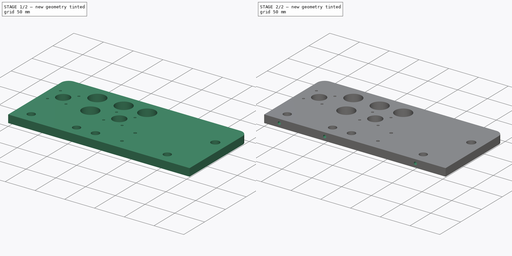
[diagram: build sequence overview — one tinted view per stage of 2, left to right]
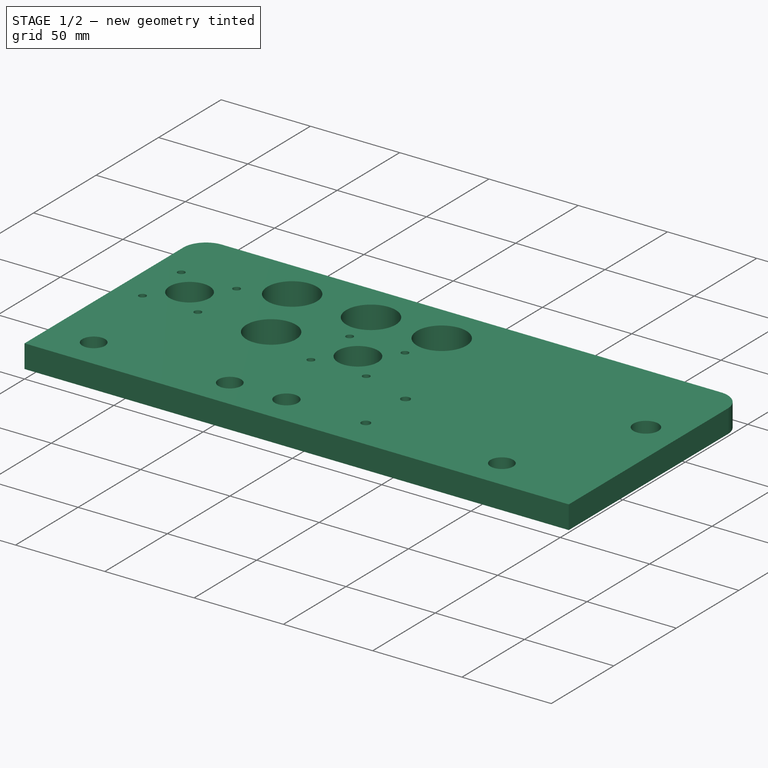
[diagram: stage 1 of 2 — iso view after this stage's code; geometry added in this stage tinted green]
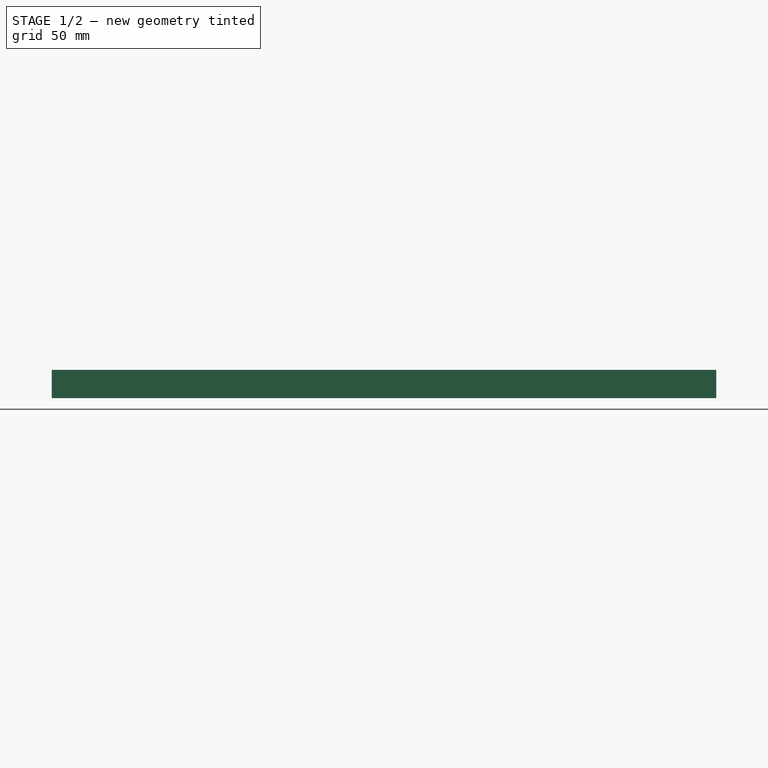
[diagram: stage 1 of 2 — front view after this stage's code; geometry added in this stage tinted green]
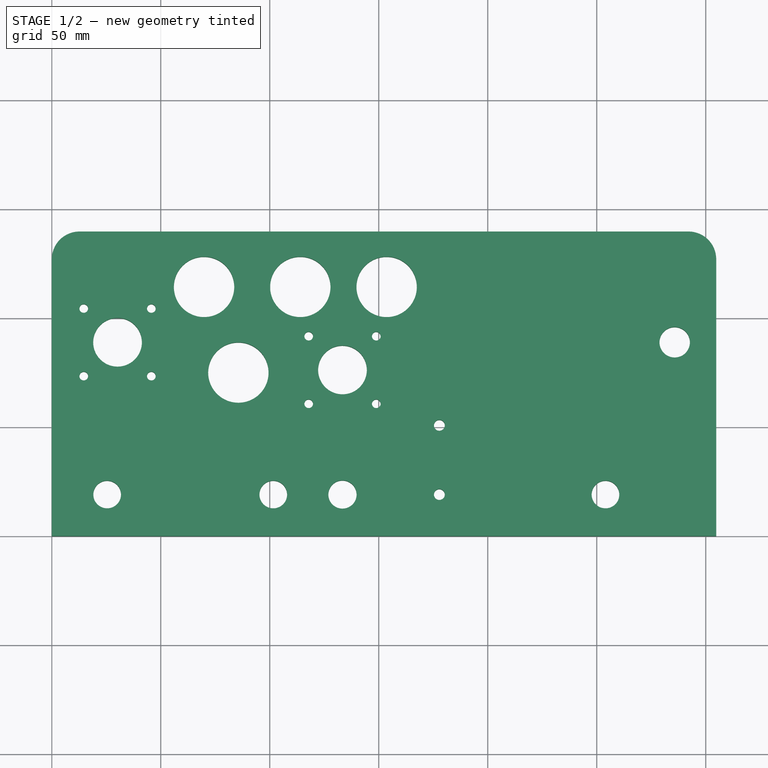
[diagram: stage 1 of 2 — top view after this stage's code; geometry added in this stage tinted green]
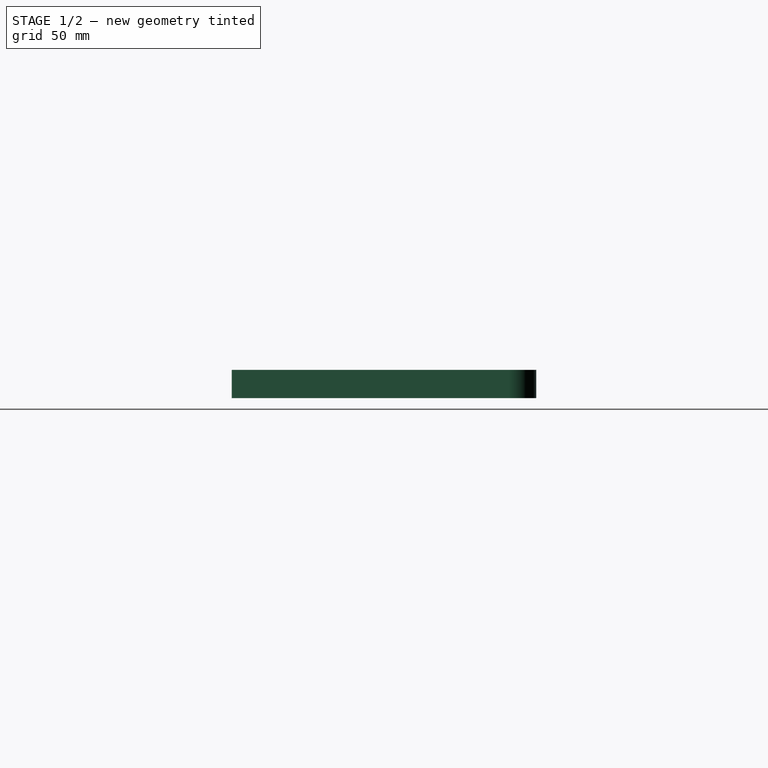
[diagram: stage 1 of 2 — right view after this stage's code; geometry added in this stage tinted green]
FCSTD DOCUMENT  (FreeCAD 0.16R6272 (Git))
Label: side
License: All rights reserved
LicenseURL: http://en.wikipedia.org/wiki/All_rights_reserved
objects: Sketcher::SketchObject×2, Part::Part2DObjectPython×2, PartDesign::Pad×1, PartDesign::Pocket×1
note: 8 computed .brp shape members not serialized (recipe doc carries the construction recipe); baked Part::Feature solids carry a one-line shape summary decoded from their .brp

FEATURE [Sketcher::SketchObject] Sketch001  label="sketch"
  sketch-geometry (27):
    g0: LineSegment StartX=0 StartY=0 StartZ=0 EndX=304.8 EndY=0 EndZ=0
    g1: LineSegment StartX=0 StartY=0 StartZ=0 EndX=0 EndY=127 EndZ=0
    g2: LineSegment StartX=12.7 StartY=139.7 StartZ=0 EndX=292.1 EndY=139.7 EndZ=0
    g3: LineSegment StartX=304.8 StartY=127 StartZ=0 EndX=304.8 EndY=0 EndZ=0
    g4: ArcOfCircle CenterX=12.7 CenterY=127 CenterZ=0 NormalX=0 NormalY=0 NormalZ=1 Radius=12.7 StartAngle=1.5708 EndAngle=3.14159
    g5: Circle CenterX=285.75 CenterY=88.9 CenterZ=0 NormalX=0 NormalY=0 NormalZ=1 Radius=6.985
    g6: Circle CenterX=133.35 CenterY=76.2 CenterZ=0 NormalX=0 NormalY=0 NormalZ=1 Radius=11.176
    g7: Circle CenterX=25.4 CenterY=19.05 CenterZ=0 NormalX=0 NormalY=0 NormalZ=1 Radius=6.35
    g8: Circle CenterX=101.6 CenterY=19.05 CenterZ=0 NormalX=0 NormalY=0 NormalZ=1 Radius=6.35
    g9: Circle CenterX=254 CenterY=19.05 CenterZ=0 NormalX=0 NormalY=0 NormalZ=1 Radius=6.35
    g10: Circle CenterX=133.35 CenterY=19.05 CenterZ=0 NormalX=0 NormalY=0 NormalZ=1 Radius=6.477
    g11: Circle CenterX=30.1625 CenterY=88.9 CenterZ=0 NormalX=0 NormalY=0 NormalZ=1 Radius=11.176
    g12: Circle CenterX=14.6625 CenterY=73.4 CenterZ=0 NormalX=0 NormalY=0 NormalZ=1 Radius=2
    g13: Circle CenterX=45.6625 CenterY=104.4 CenterZ=0 NormalX=0 NormalY=0 NormalZ=1 Radius=2
    g14: Circle CenterX=45.6625 CenterY=73.4 CenterZ=0 NormalX=0 NormalY=0 NormalZ=1 Radius=2
    g15: Circle CenterX=14.6625 CenterY=104.4 CenterZ=0 NormalX=0 NormalY=0 NormalZ=1 Radius=2
    g16: Circle CenterX=117.85 CenterY=91.7 CenterZ=0 NormalX=0 NormalY=0 NormalZ=1 Radius=2
    g17: Circle CenterX=148.85 CenterY=91.7 CenterZ=0 NormalX=0 NormalY=0 NormalZ=1 Radius=2
    g18: Circle CenterX=117.85 CenterY=60.7 CenterZ=0 NormalX=0 NormalY=0 NormalZ=1 Radius=2
    g19: Circle CenterX=148.85 CenterY=60.7 CenterZ=0 NormalX=0 NormalY=0 NormalZ=1 Radius=2
    g20: ArcOfCircle CenterX=292.1 CenterY=127 CenterZ=0 NormalX=0 NormalY=0 NormalZ=1 Radius=12.7 StartAngle=0 EndAngle=1.5708
    g21: Circle CenterX=177.8 CenterY=19.05 CenterZ=0 NormalX=0 NormalY=0 NormalZ=1 Radius=2.5
    g22: Circle CenterX=177.8 CenterY=50.8 CenterZ=0 NormalX=0 NormalY=0 NormalZ=1 Radius=2.5
    g23: Circle CenterX=69.85 CenterY=114.3 CenterZ=0 NormalX=0 NormalY=0 NormalZ=1 Radius=13.85
    g24: Circle CenterX=85.5881 CenterY=75 CenterZ=0 NormalX=0 NormalY=0 NormalZ=1 Radius=13.85
    g25: Circle CenterX=114 CenterY=114.3 CenterZ=0 NormalX=0 NormalY=0 NormalZ=1 Radius=13.85
    g26: Circle CenterX=153.61 CenterY=114.3 CenterZ=0 NormalX=0 NormalY=0 NormalZ=1 Radius=13.85
  constraints (50):
    c: Coincident(g-1,g0)
    c: Horizontal(g0)
    c: DistanceX(g0) = 304.8
    c: Coincident(g-1,g1)
    c: Vertical(g1)
    c: Horizontal(g2)
    c: Coincident(g3,g0)
    c: Vertical(g3)
    c: Tangent(g2,g4) = 1.5708
    c: Tangent(g1,g4) = 1.5708
    c: DistanceY(g-1,g2) = 139.7
    c: Radius(g4) = 12.7
    c: Radius(g5) = 6.985
    c: DistanceY(g5,g0) = -88.9
    c: DistanceY(g-1,g6) = 76.2
    c: DistanceX(g-1,g6) = 133.35
    c: Radius(g7) = 6.35
    c: Equal(g7,g8)
    c: Equal(g7,g9)
    c: DistanceX(g-1,g8) = 101.6
    c: DistanceX(g-1,g9) = 254
    c: DistanceY(g-1,g9) = 19.05
    c: DistanceX(g-1,g7) = 25.4
    c: Radius(g10) = 6.477
    c: Radius(g11) = 11.176
    c: DistanceY(g-1,g11) = 88.9
    c: DistanceX(g-1,g11) = 30.1625
    c: Radius(g12) = 2
    c: Equal(g12,g13)
    c: Equal(g13,g14)
    c: Equal(g14,g15)
    c: Equal(g12,g16)
    c: Equal(g16,g17)
    c: Equal(g17,g18)
    c: Equal(g18,g19)
    c: Tangent(g2,g20) = 1.5708
    c: Tangent(g3,g20) = 1.5708
    c: Radius(g20) = 12.7
    c: Radius(g22) = 2.5
    c: Equal(g22,g21)
    c: DistanceX(g-1,g21) = 177.8
    c: DistanceY(g-1,g22) = 50.8
    c: DistanceX(g-1,g5) = 285.75
    c: Radius(g23) = 13.85
    c: Equal(g23,g24)
    c: DistanceX(g1,g23) = 69.85
    c: Equal(g23,g25)
    c: Equal(g25,g26)
    c: DistanceY(g2,g23) = -25.4
    c: Radius(g6) = 11.176
FEATURE [PartDesign::Pad] Pad
  Length = 13
  Length2 = 100
  Sketch = -> Sketch001
  Type = 0
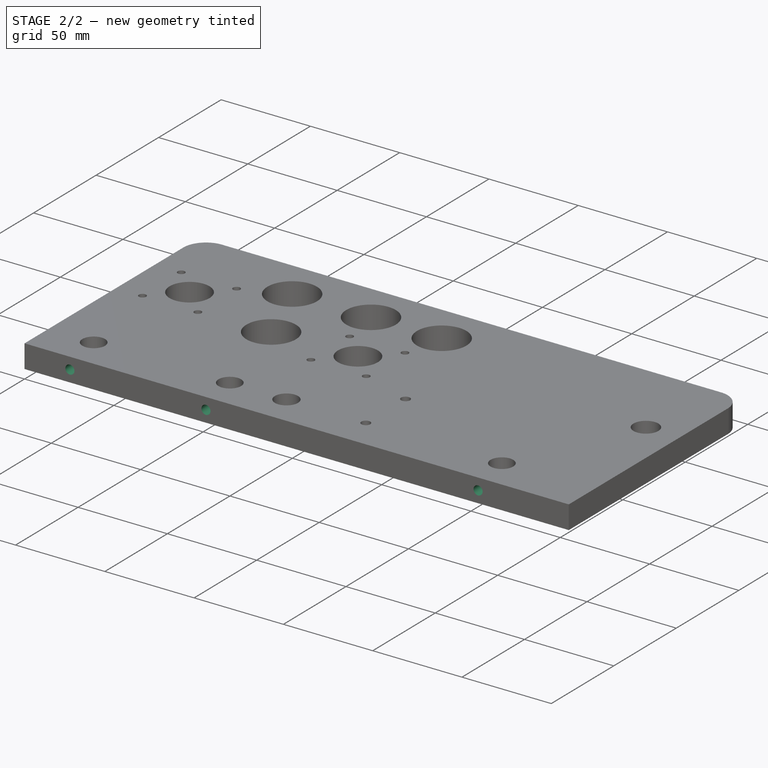
[diagram: stage 2 of 2 — iso view after this stage's code; geometry added in this stage tinted green]
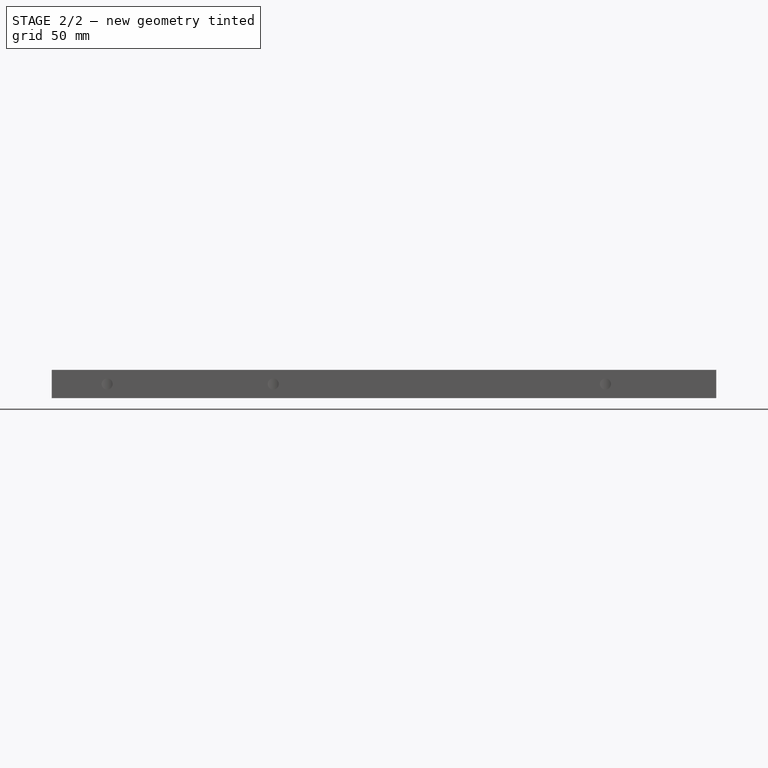
[diagram: stage 2 of 2 — front view after this stage's code; geometry added in this stage tinted green]
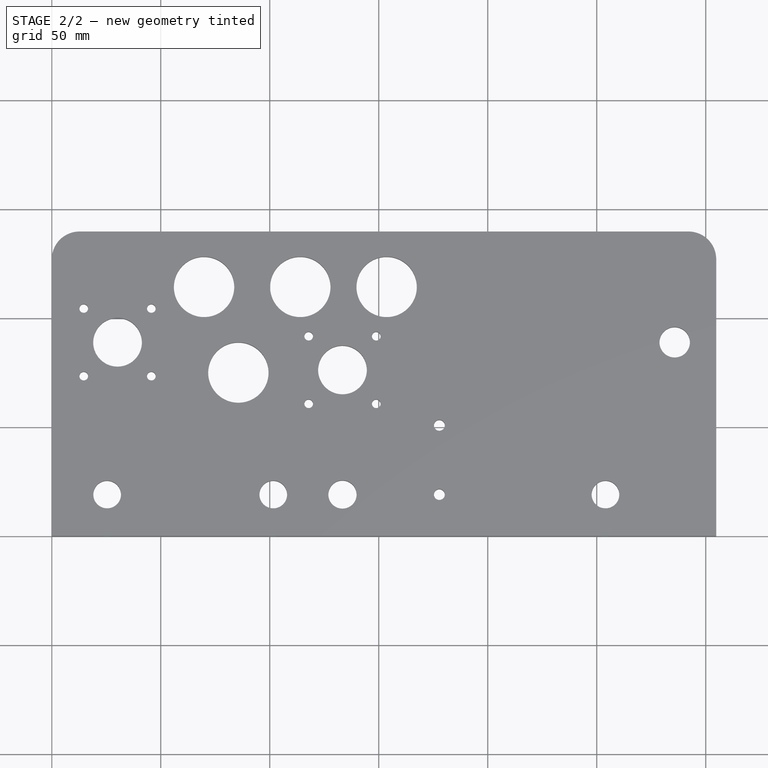
[diagram: stage 2 of 2 — top view after this stage's code; geometry added in this stage tinted green]
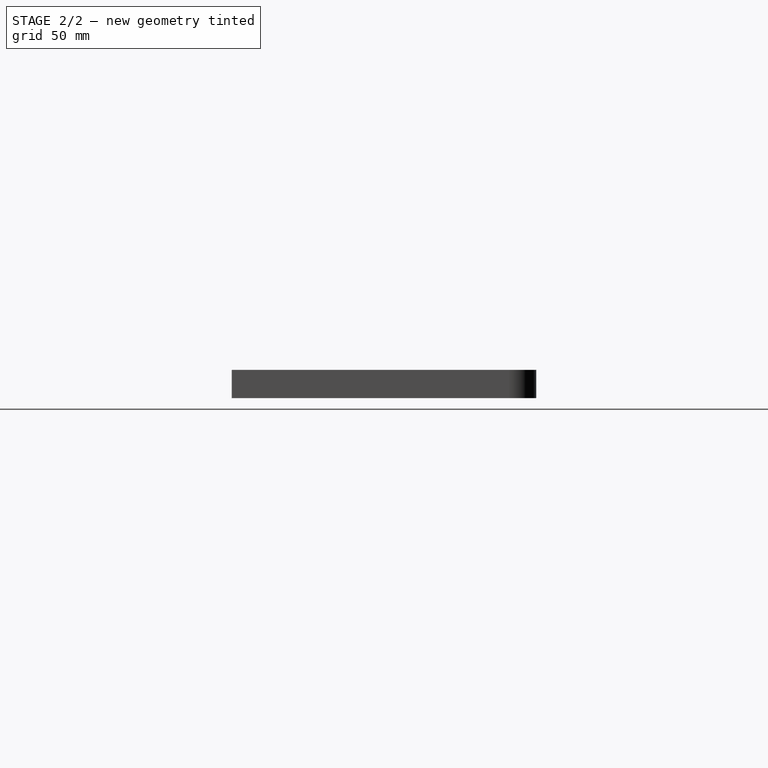
[diagram: stage 2 of 2 — right view after this stage's code; geometry added in this stage tinted green]
FEATURE [Part::Part2DObjectPython] Shape2DView  # Draft 2D object (typed FeaturePython)
  Base = -> Pad
  HiddenLines = false
  Projection = (0,0,1)
  ProjectionMode = 0
  SegmentLength = 0.05
  Tessellation = false
FEATURE [Sketcher::SketchObject] Sketch
  Placement = pos=(0,0,0) rot=(1,0,0;1.5708rad)
  Support = -> Pad [Face3]
  sketch-geometry (3):
    g0: Circle CenterX=25.4 CenterY=6.5 CenterZ=0 NormalX=0 NormalY=0 NormalZ=1 Radius=2.54
    g1: Circle CenterX=101.6 CenterY=6.5 CenterZ=0 NormalX=0 NormalY=0 NormalZ=1 Radius=2.54
    g2: Circle CenterX=254 CenterY=6.5 CenterZ=0 NormalX=0 NormalY=0 NormalZ=1 Radius=2.54
  constraints (9):
    c: Radius(g2) = 2.54
    c: Equal(g2,g1)
    c: Equal(g2,g0)
    c: DistanceX(g-1,g0) = 25.4
    c: DistanceX(g-1,g1) = 101.6
    c: DistanceX(g-1,g2) = 254
    c: DistanceY(g-1,g2) = 6.5
    c: DistanceY(g-1,g1) = 6.5
    c: DistanceY(g-1,g0) = 6.5
FEATURE [PartDesign::Pocket] Pocket
  Length = 20.32
  Sketch = -> Sketch
  Type = 0
FEATURE [Part::Part2DObjectPython] Shape2DView001  # Draft 2D object (typed FeaturePython)
  Base = -> Pocket
  HiddenLines = false
  Projection = (0,0,1)
  ProjectionMode = 0
  SegmentLength = 0.05
  Tessellation = false
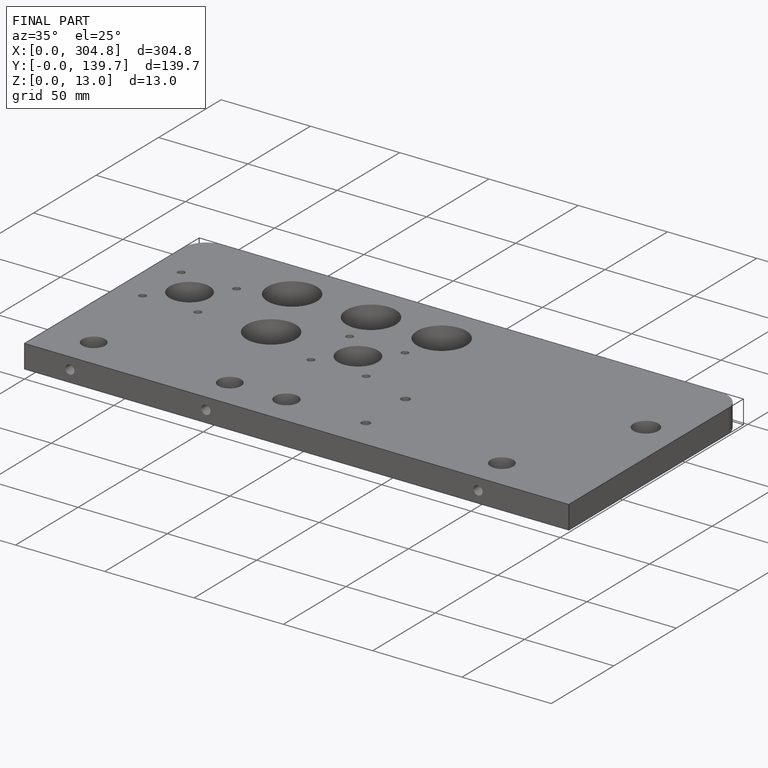
[diagram: finished part — iso view with bounding-box wireframe]
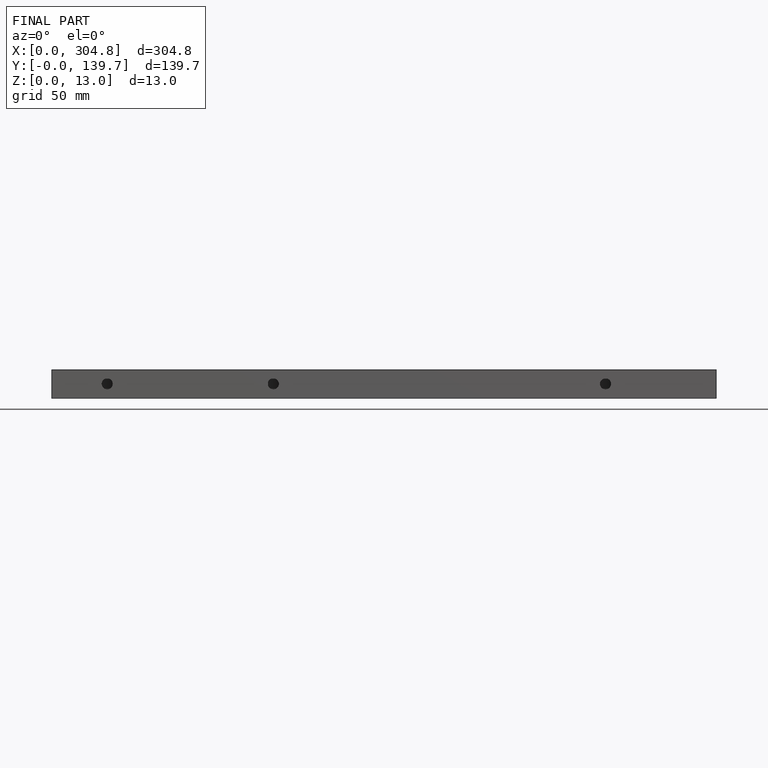
[diagram: finished part — front view with bounding-box wireframe]
